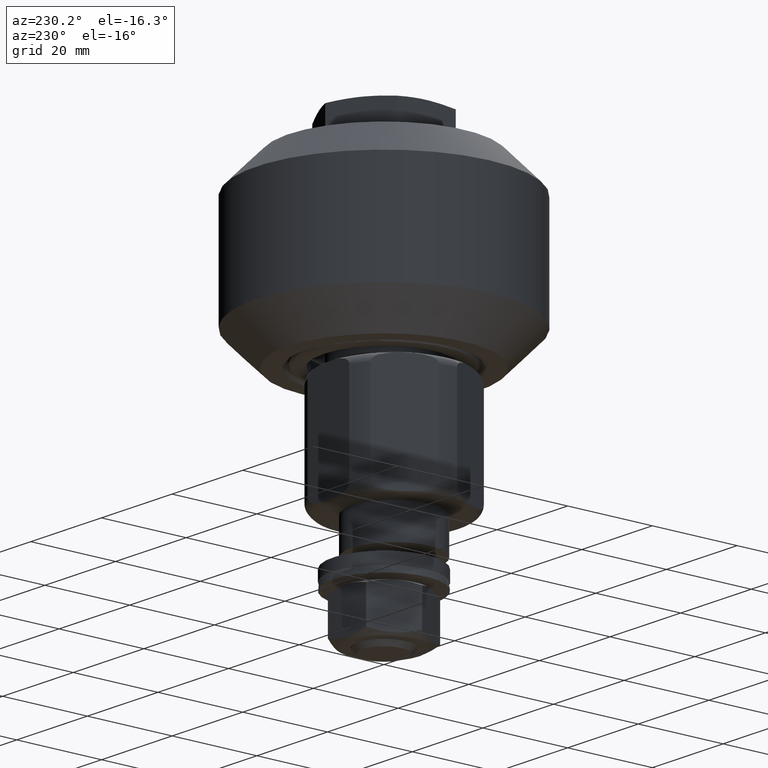
[diagram: clean part render]
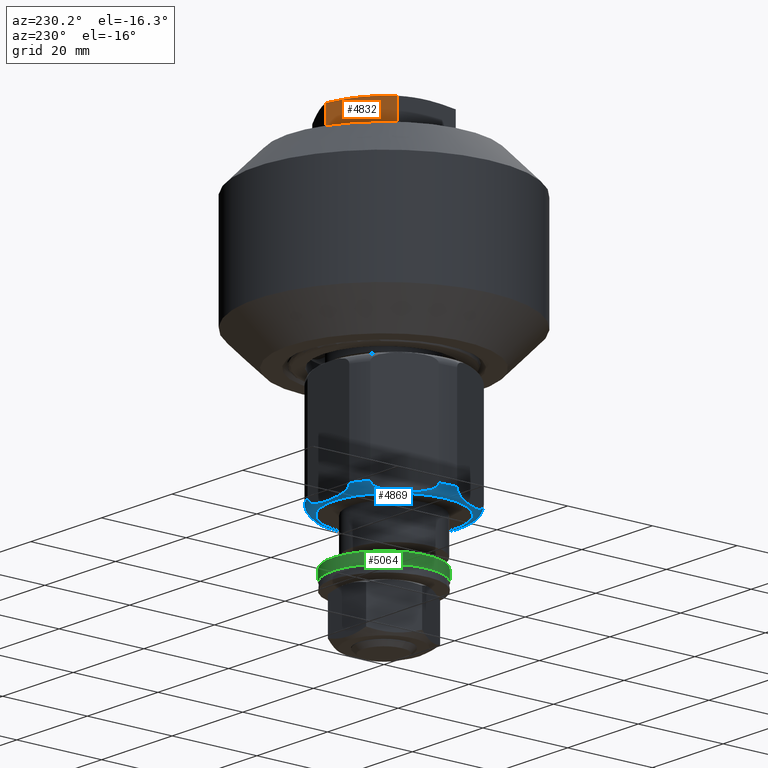
[diagram: same view with three faces highlighted in distinct colors, each labeled with its STEP entity id]
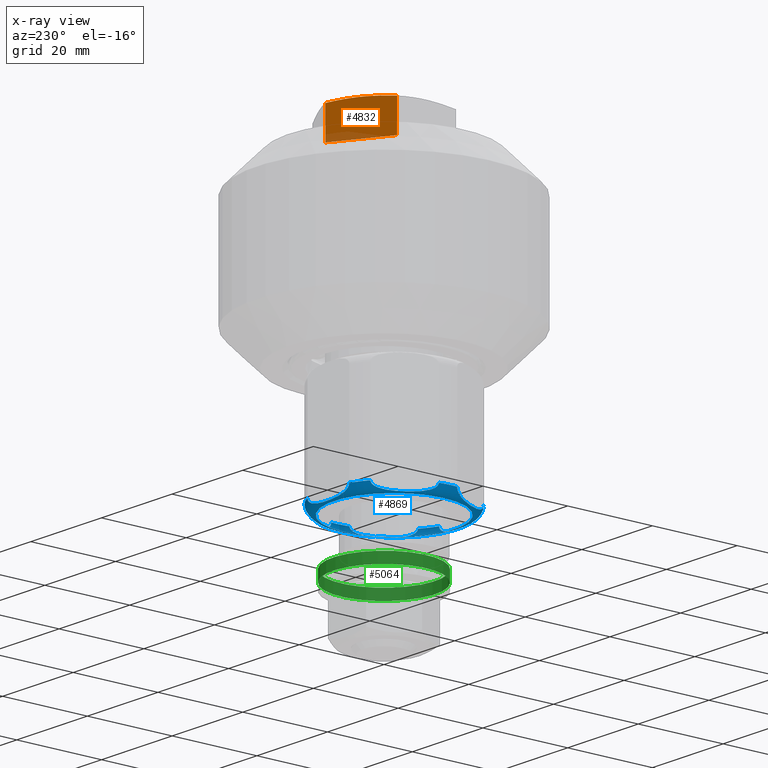
[diagram: x-ray of the same camera — body ghosted, the three highlighted faces saturated]
A machine part, auxiliary view with three faces highlighted in distinct colors.
The next image is the same camera in x-ray (body ghosted, the three faces saturated) — at least one of them is partly hidden behind the body in this view.
Their STEP definitions:

[orange] entity #4832 — the highlighted planar face has unit normal (-0.5, 0.866, 0).
#244=PLANE('',#5305);
#444=FACE_OUTER_BOUND('',#715,.T.);
#715=EDGE_LOOP('',(#3290,#3291,#3292,#3293));
#1287=LINE('',#7312,#1577);
#1288=LINE('',#7314,#1578);
#1289=LINE('',#7315,#1579);
#1577=VECTOR('',#5875,10.);
#1578=VECTOR('',#5876,10.);
#1579=VECTOR('',#5877,10.);
#1869=(
BOUNDED_CURVE()
B_SPLINE_CURVE(2,(#7297,#7298,#7299),.UNSPECIFIED.,.F.,.F.)
B_SPLINE_CURVE_WITH_KNOTS((3,3),(0.,1.38920738919511),.UNSPECIFIED.)
CURVE()
GEOMETRIC_REPRESENTATION_ITEM()
RATIONAL_B_SPLINE_CURVE((1.,1.15470053837925,1.))
REPRESENTATION_ITEM('')
);
#2001=VERTEX_POINT('',#7292);
#2002=VERTEX_POINT('',#7296);
#2005=VERTEX_POINT('',#7311);
#2006=VERTEX_POINT('',#7313);
#2518=EDGE_CURVE('',#2002,#2001,#1869,.T.);
#2523=EDGE_CURVE('',#2005,#2001,#1287,.T.);
#2524=EDGE_CURVE('',#2006,#2005,#1288,.T.);
#2525=EDGE_CURVE('',#2006,#2002,#1289,.T.);
#3290=ORIENTED_EDGE('',*,*,#2518,.T.);
#3291=ORIENTED_EDGE('',*,*,#2523,.F.);
#3292=ORIENTED_EDGE('',*,*,#2524,.F.);
#3293=ORIENTED_EDGE('',*,*,#2525,.T.);
#4832=ADVANCED_FACE('',(#444),#244,.T.);
#5305=AXIS2_PLACEMENT_3D('',#7310,#5873,#5874);
#5873=DIRECTION('center_axis',(-0.5,0.866025403784439,0.));
#5874=DIRECTION('ref_axis',(-0.866025403784439,-0.5,0.));
#5875=DIRECTION('',(0.,0.,1.));
#5876=DIRECTION('',(0.866025403784439,0.5,0.));
#5877=DIRECTION('',(0.,0.,1.));
#7292=CARTESIAN_POINT('',(0.,13.856406460551,7.46410161513776));
#7296=CARTESIAN_POINT('',(-12.,6.92820323027552,7.46410161513776));
#7297=CARTESIAN_POINT('Ctrl Pts',(-12.,6.92820323027552,7.46410161513776));
#7298=CARTESIAN_POINT('Ctrl Pts',(-6.,10.3923048454133,8.39230484541326));
#7299=CARTESIAN_POINT('Ctrl Pts',(-1.0769207853256E-14,13.856406460551,
7.46410161513776));
#7310=CARTESIAN_POINT('Origin',(0.,13.856406460551,0.));
#7311=CARTESIAN_POINT('',(0.,13.856406460551,0.));
#7312=CARTESIAN_POINT('',(0.,13.856406460551,0.));
#7313=CARTESIAN_POINT('',(-12.,6.92820323027551,0.));
#7314=CARTESIAN_POINT('',(-12.,6.92820323027551,0.));
#7315=CARTESIAN_POINT('',(-12.,6.92820323027551,0.));

[blue] entity #4869 — the highlighted toroidal blend (fillet) surface has major radius 14.25 mm and minor (blend) radius 2 mm.
#61=B_SPLINE_CURVE_WITH_KNOTS('',3,(#7460,#7461,#7462,#7463,#7464,#7465,
#7466,#7467,#7468,#7469,#7470,#7471),.UNSPECIFIED.,.F.,.F.,(4,2,2,2,2,4),
(-0.654455051765689,-0.615458381337921,-0.559182163310769,-0.457887403956303,
-0.228943701978152,0.),.UNSPECIFIED.);
#62=B_SPLINE_CURVE_WITH_KNOTS('',3,(#7475,#7476,#7477,#7478,#7479,#7480,
#7481,#7482,#7483,#7484,#7485,#7486,#7487,#7488,#7489,#7490,#7491,#7492,
#7493,#7494,#7495,#7496,#7497),.UNSPECIFIED.,.F.,.F.,(4,2,2,2,2,3,2,2,2,
2,4),(-0.65445505176569,-0.615458381337922,-0.55918216331077,-0.457887403956305,
-0.228943701978152,0.,0.228943701978153,0.457887403956305,0.559182163310771,
0.615458381337922,0.65445505176569),.UNSPECIFIED.);
#63=B_SPLINE_CURVE_WITH_KNOTS('',3,(#7501,#7502,#7503,#7504,#7505,#7506,
#7507,#7508,#7509,#7510,#7511,#7512,#7513,#7514,#7515,#7516,#7517,#7518,
#7519,#7520,#7521,#7522,#7523),.UNSPECIFIED.,.F.,.F.,(4,2,2,2,2,3,2,2,2,
2,4),(-0.654455051765691,-0.615458381337923,-0.559182163310771,-0.457887403956306,
-0.228943701978153,0.,0.228943701978153,0.457887403956306,0.559182163310772,
0.615458381337924,0.654455051765692),.UNSPECIFIED.);
#64=B_SPLINE_CURVE_WITH_KNOTS('',3,(#7527,#7528,#7529,#7530,#7531,#7532,
#7533,#7534,#7535,#7536,#7537,#7538,#7539,#7540,#7541,#7542,#7543,#7544,
#7545,#7546,#7547,#7548,#7549),.UNSPECIFIED.,.F.,.F.,(4,2,2,2,2,3,2,2,2,
2,4),(-0.65445505176569,-0.615458381337922,-0.55918216331077,-0.457887403956303,
-0.228943701978152,0.,0.228943701978152,0.457887403956303,0.55918216331077,
0.615458381337921,0.65445505176569),.UNSPECIFIED.);
#65=B_SPLINE_CURVE_WITH_KNOTS('',3,(#7553,#7554,#7555,#7556,#7557,#7558,
#7559,#7560,#7561,#7562,#7563,#7564,#7565,#7566,#7567,#7568,#7569,#7570,
#7571,#7572,#7573,#7574,#7575),.UNSPECIFIED.,.F.,.F.,(4,2,2,2,2,3,2,2,2,
2,4),(-0.65445505176569,-0.615458381337922,-0.55918216331077,-0.457887403956305,
-0.228943701978152,0.,0.228943701978153,0.457887403956305,0.559182163310771,
0.615458381337923,0.65445505176569),.UNSPECIFIED.);
#66=B_SPLINE_CURVE_WITH_KNOTS('',3,(#7579,#7580,#7581,#7582,#7583,#7584,
#7585,#7586,#7587,#7588,#7589,#7590,#7591,#7592,#7593,#7594,#7595,#7596,
#7597,#7598,#7599,#7600,#7601),.UNSPECIFIED.,.F.,.F.,(4,2,2,2,2,3,2,2,2,
2,4),(-0.65445505176569,-0.615458381337922,-0.559182163310771,-0.457887403956305,
-0.228943701978153,0.,0.228943701978153,0.457887403956305,0.559182163310771,
0.615458381337922,0.65445505176569),.UNSPECIFIED.);
#67=B_SPLINE_CURVE_WITH_KNOTS('',3,(#7604,#7605,#7606,#7607,#7608,#7609,
#7610,#7611,#7612,#7613,#7614,#7615),.UNSPECIFIED.,.F.,.F.,(4,2,2,2,2,4),
(0.,0.228943701978152,0.457887403956303,0.559182163310769,0.615458381337921,
0.654455051765689),.UNSPECIFIED.);
#132=TOROIDAL_SURFACE('',#5379,14.25,2.);
#481=FACE_OUTER_BOUND('',#761,.T.);
#761=EDGE_LOOP('',(#3425,#3426,#3427,#3428,#3429,#3430,#3431,#3432,#3433,
#3434,#3435,#3436,#3437,#3438,#3439,#3440));
#1054=CIRCLE('',#5380,14.25);
#1055=CIRCLE('',#5381,2.);
#1056=CIRCLE('',#5382,16.25);
#1057=CIRCLE('',#5383,16.25);
#1058=CIRCLE('',#5384,16.25);
#1059=CIRCLE('',#5385,16.25);
#1060=CIRCLE('',#5386,16.25);
#1061=CIRCLE('',#5387,16.25);
#2044=VERTEX_POINT('',#7455);
#2045=VERTEX_POINT('',#7457);
#2046=VERTEX_POINT('',#7459);
#2047=VERTEX_POINT('',#7472);
#2048=VERTEX_POINT('',#7474);
#2049=VERTEX_POINT('',#7498);
#2050=VERTEX_POINT('',#7500);
#2051=VERTEX_POINT('',#7524);
#2052=VERTEX_POINT('',#7526);
#2053=VERTEX_POINT('',#7550);
#2054=VERTEX_POINT('',#7552);
#2055=VERTEX_POINT('',#7576);
#2056=VERTEX_POINT('',#7578);
#2057=VERTEX_POINT('',#7602);
#2588=EDGE_CURVE('',#2044,#2044,#1054,.T.);
#2589=EDGE_CURVE('',#2044,#2045,#1055,.T.);
#2590=EDGE_CURVE('',#2046,#2045,#61,.T.);
#2591=EDGE_CURVE('',#2046,#2047,#1056,.T.);
#2592=EDGE_CURVE('',#2048,#2047,#62,.T.);
#2593=EDGE_CURVE('',#2048,#2049,#1057,.T.);
#2594=EDGE_CURVE('',#2050,#2049,#63,.T.);
#2595=EDGE_CURVE('',#2050,#2051,#1058,.T.);
#2596=EDGE_CURVE('',#2052,#2051,#64,.T.);
#2597=EDGE_CURVE('',#2052,#2053,#1059,.T.);
#2598=EDGE_CURVE('',#2054,#2053,#65,.T.);
#2599=EDGE_CURVE('',#2054,#2055,#1060,.T.);
#2600=EDGE_CURVE('',#2056,#2055,#66,.T.);
#2601=EDGE_CURVE('',#2056,#2057,#1061,.T.);
#2602=EDGE_CURVE('',#2045,#2057,#67,.T.);
#3425=ORIENTED_EDGE('',*,*,#2588,.F.);
#3426=ORIENTED_EDGE('',*,*,#2589,.T.);
#3427=ORIENTED_EDGE('',*,*,#2590,.F.);
#3428=ORIENTED_EDGE('',*,*,#2591,.T.);
#3429=ORIENTED_EDGE('',*,*,#2592,.F.);
#3430=ORIENTED_EDGE('',*,*,#2593,.T.);
#3431=ORIENTED_EDGE('',*,*,#2594,.F.);
#3432=ORIENTED_EDGE('',*,*,#2595,.T.);
#3433=ORIENTED_EDGE('',*,*,#2596,.F.);
#3434=ORIENTED_EDGE('',*,*,#2597,.T.);
#3435=ORIENTED_EDGE('',*,*,#2598,.F.);
#3436=ORIENTED_EDGE('',*,*,#2599,.T.);
#3437=ORIENTED_EDGE('',*,*,#2600,.F.);
#3438=ORIENTED_EDGE('',*,*,#2601,.T.);
#3439=ORIENTED_EDGE('',*,*,#2602,.F.);
#3440=ORIENTED_EDGE('',*,*,#2589,.F.);
#4869=ADVANCED_FACE('',(#481),#132,.T.);
#5379=AXIS2_PLACEMENT_3D('',#7454,#6052,#6053);
#5380=AXIS2_PLACEMENT_3D('',#7456,#6054,#6055);
#5381=AXIS2_PLACEMENT_3D('',#7458,#6056,#6057);
#5382=AXIS2_PLACEMENT_3D('',#7473,#6058,#6059);
#5383=AXIS2_PLACEMENT_3D('',#7499,#6060,#6061);
#5384=AXIS2_PLACEMENT_3D('',#7525,#6062,#6063);
#5385=AXIS2_PLACEMENT_3D('',#7551,#6064,#6065);
#5386=AXIS2_PLACEMENT_3D('',#7577,#6066,#6067);
#5387=AXIS2_PLACEMENT_3D('',#7603,#6068,#6069);
#6052=DIRECTION('center_axis',(-1.,0.,0.));
#6053=DIRECTION('ref_axis',(0.,0.,1.));
#6054=DIRECTION('center_axis',(1.,0.,0.));
#6055=DIRECTION('ref_axis',(0.,0.,1.));
#6056=DIRECTION('center_axis',(0.,1.,-1.22464679914735E-16));
#6057=DIRECTION('ref_axis',(0.,-1.22464679914735E-16,-1.));
#6058=DIRECTION('center_axis',(1.,0.,0.));
#6059=DIRECTION('ref_axis',(0.,-0.607100372724096,0.794625155301708));
#6060=DIRECTION('center_axis',(1.,0.,0.));
#6061=DIRECTION('ref_axis',(0.,-0.991715757339482,-0.128451767775214));
#6062=DIRECTION('center_axis',(1.,0.,0.));
#6063=DIRECTION('ref_axis',(0.,-0.384615384615384,-0.923076923076923));
#6064=DIRECTION('center_axis',(1.,0.,0.));
#6065=DIRECTION('ref_axis',(0.,0.607100372724097,-0.794625155301708));
#6066=DIRECTION('center_axis',(1.,0.,0.));
#6067=DIRECTION('ref_axis',(0.,0.991715757339482,0.128451767775215));
#6068=DIRECTION('center_axis',(1.,0.,0.));
#6069=DIRECTION('ref_axis',(0.,0.384615384615385,0.923076923076923));
#7454=CARTESIAN_POINT('Origin',(11.25,0.,0.));
#7455=CARTESIAN_POINT('',(13.25,-1.74512168878498E-15,-14.25));
#7456=CARTESIAN_POINT('Origin',(13.25,0.,0.));
#7457=CARTESIAN_POINT('',(13.1040496217739,-3.00015327053268E-15,-15.));
#7458=CARTESIAN_POINT('Origin',(11.25,-1.74512168878498E-15,-14.25));
#7459=CARTESIAN_POINT('',(11.25,6.25000000000001,-15.));
#7460=CARTESIAN_POINT('Ctrl Pts',(11.25,6.25,-15.));
#7461=CARTESIAN_POINT('Ctrl Pts',(11.3799889014259,6.25,-15.));
#7462=CARTESIAN_POINT('Ctrl Pts',(11.5301733976963,6.20785190453592,-15.));
#7463=CARTESIAN_POINT('Ctrl Pts',(11.8106276528386,6.05885487831374,-15.));
#7464=CARTESIAN_POINT('Ctrl Pts',(11.9729148831963,5.90285789658059,-15.));
#7465=CARTESIAN_POINT('Ctrl Pts',(12.2949896343247,5.48795871425235,-15.));
#7466=CARTESIAN_POINT('Ctrl Pts',(12.4633942317916,5.11943470700872,-15.));
#7467=CARTESIAN_POINT('Ctrl Pts',(12.8226536595242,4.07891463904055,-15.));
#7468=CARTESIAN_POINT('Ctrl Pts',(12.9412026717376,3.25922012694919,-15.));
#7469=CARTESIAN_POINT('Ctrl Pts',(13.083465251009,1.60146916886194,-15.));
#7470=CARTESIAN_POINT('Ctrl Pts',(13.1040496217739,0.763145673260502,-15.));
#7471=CARTESIAN_POINT('Ctrl Pts',(13.1040496217739,-3.60822483003176E-15,
-15.));
#7472=CARTESIAN_POINT('',(11.25,9.86538105676656,-12.9126587736528));
#7473=CARTESIAN_POINT('Origin',(11.25,0.,0.));
#7474=CARTESIAN_POINT('',(11.25,16.1153810567666,-2.08734122634726));
#7475=CARTESIAN_POINT('Ctrl Pts',(11.25,16.1153810567666,-2.08734122634726));
#7476=CARTESIAN_POINT('Ctrl Pts',(11.3799889014259,16.1153810567666,-2.08734122634726));
#7477=CARTESIAN_POINT('Ctrl Pts',(11.5301733976963,16.0943070090345,-2.12384254774028));
#7478=CARTESIAN_POINT('Ctrl Pts',(11.8106276528386,16.0198084959235,-2.25287775753702));
#7479=CARTESIAN_POINT('Ctrl Pts',(11.9729148831963,15.9418100050569,-2.38797510663163));
#7480=CARTESIAN_POINT('Ctrl Pts',(12.2949896343247,15.7343604138928,-2.74728833853728));
#7481=CARTESIAN_POINT('Ctrl Pts',(12.4633942317916,15.5500984102709,-3.06643949071469));
#7482=CARTESIAN_POINT('Ctrl Pts',(12.8226536595242,15.0298383762869,-3.96755630272264));
#7483=CARTESIAN_POINT('Ctrl Pts',(12.9412026717376,14.6199911202412,-4.67743257353645));
#7484=CARTESIAN_POINT('Ctrl Pts',(13.083465251009,13.7911156411975,-6.113087016388));
#7485=CARTESIAN_POINT('Ctrl Pts',(13.1040496217739,13.3719538933968,-6.83909646016823));
#7486=CARTESIAN_POINT('Ctrl Pts',(13.1040496217739,12.9903810567666,-7.50000000000001));
#7487=CARTESIAN_POINT('Ctrl Pts',(13.1040496217739,12.6088082201363,-8.16090353983179));
#7488=CARTESIAN_POINT('Ctrl Pts',(13.083465251009,12.1896464723356,-8.88691298361201));
#7489=CARTESIAN_POINT('Ctrl Pts',(12.9412026717376,11.360770993292,-10.3225674264636));
#7490=CARTESIAN_POINT('Ctrl Pts',(12.8226536595242,10.9509237372463,-11.0324436972774));
#7491=CARTESIAN_POINT('Ctrl Pts',(12.4633942317916,10.4306637032622,-11.9335605092853));
#7492=CARTESIAN_POINT('Ctrl Pts',(12.2949896343247,10.2464016996404,-12.2527116614627));
#7493=CARTESIAN_POINT('Ctrl Pts',(11.9729148831963,10.0389521084763,-12.6120248933684));
#7494=CARTESIAN_POINT('Ctrl Pts',(11.8106276528386,9.9609536176097,-12.747122242463));
#7495=CARTESIAN_POINT('Ctrl Pts',(11.5301733976963,9.88645510449861,-12.8761574522597));
#7496=CARTESIAN_POINT('Ctrl Pts',(11.3799889014259,9.86538105676657,-12.9126587736528));
#7497=CARTESIAN_POINT('Ctrl Pts',(11.25,9.86538105676657,-12.9126587736528));
#7498=CARTESIAN_POINT('',(11.25,16.1153810567666,2.08734122634724));
#7499=CARTESIAN_POINT('Origin',(11.25,0.,0.));
#7500=CARTESIAN_POINT('',(11.25,9.86538105676658,12.9126587736527));
#7501=CARTESIAN_POINT('Ctrl Pts',(11.25,9.86538105676657,12.9126587736527));
#7502=CARTESIAN_POINT('Ctrl Pts',(11.3799889014259,9.86538105676657,12.9126587736527));
#7503=CARTESIAN_POINT('Ctrl Pts',(11.5301733976963,9.88645510449861,12.8761574522597));
#7504=CARTESIAN_POINT('Ctrl Pts',(11.8106276528386,9.96095361760969,12.747122242463));
#7505=CARTESIAN_POINT('Ctrl Pts',(11.9729148831963,10.0389521084763,12.6120248933684));
#7506=CARTESIAN_POINT('Ctrl Pts',(12.2949896343247,10.2464016996404,12.2527116614627));
#7507=CARTESIAN_POINT('Ctrl Pts',(12.4633942317916,10.4306637032622,11.9335605092853));
#7508=CARTESIAN_POINT('Ctrl Pts',(12.8226536595242,10.9509237372463,11.0324436972774));
#7509=CARTESIAN_POINT('Ctrl Pts',(12.9412026717376,11.360770993292,10.3225674264636));
#7510=CARTESIAN_POINT('Ctrl Pts',(13.083465251009,12.1896464723356,8.886912983612));
#7511=CARTESIAN_POINT('Ctrl Pts',(13.1040496217739,12.6088082201363,8.16090353983178));
#7512=CARTESIAN_POINT('Ctrl Pts',(13.1040496217739,12.9903810567666,7.49999999999999));
#7513=CARTESIAN_POINT('Ctrl Pts',(13.1040496217739,13.3719538933968,6.83909646016821));
#7514=CARTESIAN_POINT('Ctrl Pts',(13.083465251009,13.7911156411976,6.11308701638798));
#7515=CARTESIAN_POINT('Ctrl Pts',(12.9412026717376,14.6199911202412,4.67743257353643));
#7516=CARTESIAN_POINT('Ctrl Pts',(12.8226536595242,15.0298383762869,3.96755630272262));
#7517=CARTESIAN_POINT('Ctrl Pts',(12.4633942317916,15.550098410271,3.06643949071466));
#7518=CARTESIAN_POINT('Ctrl Pts',(12.2949896343247,15.7343604138928,2.74728833853725));
#7519=CARTESIAN_POINT('Ctrl Pts',(11.9729148831963,15.9418100050569,2.3879751066316));
#7520=CARTESIAN_POINT('Ctrl Pts',(11.8106276528386,16.0198084959235,2.25287775753699));
#7521=CARTESIAN_POINT('Ctrl Pts',(11.5301733976963,16.0943070090345,2.12384254774025));
#7522=CARTESIAN_POINT('Ctrl Pts',(11.3799889014259,16.1153810567666,2.08734122634723));
#7523=CARTESIAN_POINT('Ctrl Pts',(11.25,16.1153810567666,2.08734122634724));
#7524=CARTESIAN_POINT('',(11.25,6.25000000000001,15.));
#7525=CARTESIAN_POINT('Origin',(11.25,0.,0.));
#7526=CARTESIAN_POINT('',(11.25,-6.25000000000001,15.));
#7527=CARTESIAN_POINT('Ctrl Pts',(11.25,-6.25000000000001,15.));
#7528=CARTESIAN_POINT('Ctrl Pts',(11.3799889014259,-6.25000000000001,15.));
#7529=CARTESIAN_POINT('Ctrl Pts',(11.5301733976963,-6.20785190453592,15.));
#7530=CARTESIAN_POINT('Ctrl Pts',(11.8106276528386,-6.05885487831375,15.));
#7531=CARTESIAN_POINT('Ctrl Pts',(11.9729148831963,-5.90285789658059,15.));
#7532=CARTESIAN_POINT('Ctrl Pts',(12.2949896343247,-5.48795871425236,15.));
#7533=CARTESIAN_POINT('Ctrl Pts',(12.4633942317916,-5.11943470700873,15.));
#7534=CARTESIAN_POINT('Ctrl Pts',(12.8226536595242,-4.07891463904056,15.));
#7535=CARTESIAN_POINT('Ctrl Pts',(12.9412026717376,-3.25922012694919,15.));
#7536=CARTESIAN_POINT('Ctrl Pts',(13.083465251009,-1.60146916886195,15.));
#7537=CARTESIAN_POINT('Ctrl Pts',(13.1040496217739,-0.763145673260504,15.));
#7538=CARTESIAN_POINT('Ctrl Pts',(13.1040496217739,1.92296268638356E-15,
15.));
#7539=CARTESIAN_POINT('Ctrl Pts',(13.1040496217739,0.763145673260508,15.));
#7540=CARTESIAN_POINT('Ctrl Pts',(13.083465251009,1.60146916886195,15.));
#7541=CARTESIAN_POINT('Ctrl Pts',(12.9412026717376,3.2592201269492,15.));
#7542=CARTESIAN_POINT('Ctrl Pts',(12.8226536595242,4.07891463904056,15.));
#7543=CARTESIAN_POINT('Ctrl Pts',(12.4633942317916,5.11943470700874,15.));
#7544=CARTESIAN_POINT('Ctrl Pts',(12.2949896343247,5.48795871425236,15.));
#7545=CARTESIAN_POINT('Ctrl Pts',(11.9729148831963,5.9028578965806,15.));
#7546=CARTESIAN_POINT('Ctrl Pts',(11.8106276528386,6.05885487831375,15.));
#7547=CARTESIAN_POINT('Ctrl Pts',(11.5301733976963,6.20785190453593,15.));
#7548=CARTESIAN_POINT('Ctrl Pts',(11.3799889014259,6.25000000000001,15.));
#7549=CARTESIAN_POINT('Ctrl Pts',(11.25,6.25000000000001,15.));
#7550=CARTESIAN_POINT('',(11.25,-9.86538105676658,12.9126587736527));
#7551=CARTESIAN_POINT('Origin',(11.25,0.,0.));
#7552=CARTESIAN_POINT('',(11.25,-16.1153810567666,2.08734122634726));
#7553=CARTESIAN_POINT('Ctrl Pts',(11.25,-16.1153810567666,2.08734122634726));
#7554=CARTESIAN_POINT('Ctrl Pts',(11.3799889014259,-16.1153810567666,2.08734122634726));
#7555=CARTESIAN_POINT('Ctrl Pts',(11.5301733976963,-16.0943070090345,2.12384254774028));
#7556=CARTESIAN_POINT('Ctrl Pts',(11.8106276528386,-16.0198084959235,2.25287775753702));
#7557=CARTESIAN_POINT('Ctrl Pts',(11.9729148831963,-15.9418100050569,2.38797510663163));
#7558=CARTESIAN_POINT('Ctrl Pts',(12.2949896343247,-15.7343604138928,2.74728833853727));
#7559=CARTESIAN_POINT('Ctrl Pts',(12.4633942317916,-15.550098410271,3.06643949071469));
#7560=CARTESIAN_POINT('Ctrl Pts',(12.8226536595242,-15.0298383762869,3.96755630272264));
#7561=CARTESIAN_POINT('Ctrl Pts',(12.9412026717376,-14.6199911202412,4.67743257353645));
#7562=CARTESIAN_POINT('Ctrl Pts',(13.083465251009,-13.7911156411976,6.113087016388));
#7563=CARTESIAN_POINT('Ctrl Pts',(13.1040496217739,-13.3719538933968,6.83909646016822));
#7564=CARTESIAN_POINT('Ctrl Pts',(13.1040496217739,-12.9903810567666,7.5));
#7565=CARTESIAN_POINT('Ctrl Pts',(13.1040496217739,-12.6088082201363,8.16090353983178));
#7566=CARTESIAN_POINT('Ctrl Pts',(13.083465251009,-12.1896464723356,8.886912983612));
#7567=CARTESIAN_POINT('Ctrl Pts',(12.9412026717376,-11.360770993292,10.3225674264636));
#7568=CARTESIAN_POINT('Ctrl Pts',(12.8226536595242,-10.9509237372463,11.0324436972774));
#7569=CARTESIAN_POINT('Ctrl Pts',(12.4633942317916,-10.4306637032622,11.9335605092853));
#7570=CARTESIAN_POINT('Ctrl Pts',(12.2949896343247,-10.2464016996404,12.2527116614627));
#7571=CARTESIAN_POINT('Ctrl Pts',(11.9729148831963,-10.0389521084763,12.6120248933684));
#7572=CARTESIAN_POINT('Ctrl Pts',(11.8106276528386,-9.9609536176097,12.747122242463));
#7573=CARTESIAN_POINT('Ctrl Pts',(11.5301733976963,-9.88645510449861,12.8761574522597));
#7574=CARTESIAN_POINT('Ctrl Pts',(11.3799889014259,-9.86538105676657,12.9126587736527));
#7575=CARTESIAN_POINT('Ctrl Pts',(11.25,-9.86538105676657,12.9126587736527));
#7576=CARTESIAN_POINT('',(11.25,-16.1153810567666,-2.08734122634724));
#7577=CARTESIAN_POINT('Origin',(11.25,0.,0.));
#7578=CARTESIAN_POINT('',(11.25,-9.86538105676658,-12.9126587736527));
#7579=CARTESIAN_POINT('Ctrl Pts',(11.25,-9.86538105676658,-12.9126587736527));
#7580=CARTESIAN_POINT('Ctrl Pts',(11.3799889014259,-9.86538105676658,-12.9126587736527));
#7581=CARTESIAN_POINT('Ctrl Pts',(11.5301733976963,-9.88645510449862,-12.8761574522597));
#7582=CARTESIAN_POINT('Ctrl Pts',(11.8106276528386,-9.96095361760971,-12.747122242463));
#7583=CARTESIAN_POINT('Ctrl Pts',(11.9729148831963,-10.0389521084763,-12.6120248933684));
#7584=CARTESIAN_POINT('Ctrl Pts',(12.2949896343247,-10.2464016996404,-12.2527116614627));
#7585=CARTESIAN_POINT('Ctrl Pts',(12.4633942317916,-10.4306637032622,-11.9335605092853));
#7586=CARTESIAN_POINT('Ctrl Pts',(12.8226536595242,-10.9509237372463,-11.0324436972774));
#7587=CARTESIAN_POINT('Ctrl Pts',(12.9412026717376,-11.360770993292,-10.3225674264636));
#7588=CARTESIAN_POINT('Ctrl Pts',(13.083465251009,-12.1896464723356,-8.886912983612));
#7589=CARTESIAN_POINT('Ctrl Pts',(13.1040496217739,-12.6088082201363,-8.16090353983178));
#7590=CARTESIAN_POINT('Ctrl Pts',(13.1040496217739,-12.9903810567666,-7.5));
#7591=CARTESIAN_POINT('Ctrl Pts',(13.1040496217739,-13.3719538933968,-6.83909646016822));
#7592=CARTESIAN_POINT('Ctrl Pts',(13.083465251009,-13.7911156411976,-6.11308701638799));
#7593=CARTESIAN_POINT('Ctrl Pts',(12.9412026717376,-14.6199911202412,-4.67743257353644));
#7594=CARTESIAN_POINT('Ctrl Pts',(12.8226536595242,-15.0298383762869,-3.96755630272263));
#7595=CARTESIAN_POINT('Ctrl Pts',(12.4633942317916,-15.550098410271,-3.06643949071468));
#7596=CARTESIAN_POINT('Ctrl Pts',(12.2949896343247,-15.7343604138928,-2.74728833853726));
#7597=CARTESIAN_POINT('Ctrl Pts',(11.9729148831963,-15.9418100050569,-2.38797510663162));
#7598=CARTESIAN_POINT('Ctrl Pts',(11.8106276528386,-16.0198084959235,-2.25287775753701));
#7599=CARTESIAN_POINT('Ctrl Pts',(11.5301733976963,-16.0943070090345,-2.12384254774027));
#7600=CARTESIAN_POINT('Ctrl Pts',(11.3799889014259,-16.1153810567666,-2.08734122634725));
#7601=CARTESIAN_POINT('Ctrl Pts',(11.25,-16.1153810567666,-2.08734122634725));
#7602=CARTESIAN_POINT('',(11.25,-6.25000000000002,-15.));
#7603=CARTESIAN_POINT('Origin',(11.25,0.,0.));
#7604=CARTESIAN_POINT('Ctrl Pts',(13.1040496217739,-4.16333634234434E-15,
-15.));
#7605=CARTESIAN_POINT('Ctrl Pts',(13.1040496217739,-0.763145673260509,-15.));
#7606=CARTESIAN_POINT('Ctrl Pts',(13.083465251009,-1.60146916886195,-15.));
#7607=CARTESIAN_POINT('Ctrl Pts',(12.9412026717376,-3.2592201269492,-15.));
#7608=CARTESIAN_POINT('Ctrl Pts',(12.8226536595242,-4.07891463904056,-15.));
#7609=CARTESIAN_POINT('Ctrl Pts',(12.4633942317916,-5.11943470700873,-15.));
#7610=CARTESIAN_POINT('Ctrl Pts',(12.2949896343247,-5.48795871425236,-15.));
#7611=CARTESIAN_POINT('Ctrl Pts',(11.9729148831963,-5.90285789658059,-15.));
#7612=CARTESIAN_POINT('Ctrl Pts',(11.8106276528386,-6.05885487831375,-15.));
#7613=CARTESIAN_POINT('Ctrl Pts',(11.5301733976963,-6.20785190453593,-15.));
#7614=CARTESIAN_POINT('Ctrl Pts',(11.3799889014259,-6.25000000000001,-15.));
#7615=CARTESIAN_POINT('Ctrl Pts',(11.25,-6.25000000000001,-15.));

[green] entity #5064 — the highlighted cylindrical surface (bore or boss wall) has radius 12 mm, axis along (0, -0, 1).
#237=CYLINDRICAL_SURFACE('',#5755,12.);
#676=FACE_OUTER_BOUND('',#961,.T.);
#961=EDGE_LOOP('',(#4563,#4564,#4565,#4566));
#1225=CIRCLE('',#5756,12.);
#1226=CIRCLE('',#5757,12.);
#1569=LINE('',#9115,#1859);
#1859=VECTOR('',#7059,12.);
#2423=VERTEX_POINT('',#9112);
#2424=VERTEX_POINT('',#9114);
#3157=EDGE_CURVE('',#2423,#2423,#1225,.T.);
#3158=EDGE_CURVE('',#2423,#2424,#1569,.T.);
#3159=EDGE_CURVE('',#2424,#2424,#1226,.T.);
#4563=ORIENTED_EDGE('',*,*,#3157,.T.);
#4564=ORIENTED_EDGE('',*,*,#3158,.T.);
#4565=ORIENTED_EDGE('',*,*,#3159,.F.);
#4566=ORIENTED_EDGE('',*,*,#3158,.F.);
#5064=ADVANCED_FACE('',(#676),#237,.T.);
#5755=AXIS2_PLACEMENT_3D('',#9111,#7055,#7056);
#5756=AXIS2_PLACEMENT_3D('',#9113,#7057,#7058);
#5757=AXIS2_PLACEMENT_3D('',#9116,#7060,#7061);
#7055=DIRECTION('center_axis',(1.,0.,0.));
#7056=DIRECTION('ref_axis',(0.,-1.,0.));
#7057=DIRECTION('center_axis',(-1.,0.,0.));
#7058=DIRECTION('ref_axis',(0.,-1.,0.));
#7059=DIRECTION('',(-1.,0.,0.));
#7060=DIRECTION('center_axis',(-1.,0.,0.));
#7061=DIRECTION('ref_axis',(0.,-1.,0.));
#9111=CARTESIAN_POINT('Origin',(0.,0.,0.));
#9112=CARTESIAN_POINT('',(2.5,12.,1.46957615897682E-15));
#9113=CARTESIAN_POINT('Origin',(2.5,0.,0.));
#9114=CARTESIAN_POINT('',(0.,12.,1.46957615897682E-15));
#9115=CARTESIAN_POINT('',(0.,12.,1.46957615897682E-15));
#9116=CARTESIAN_POINT('Origin',(0.,0.,0.));